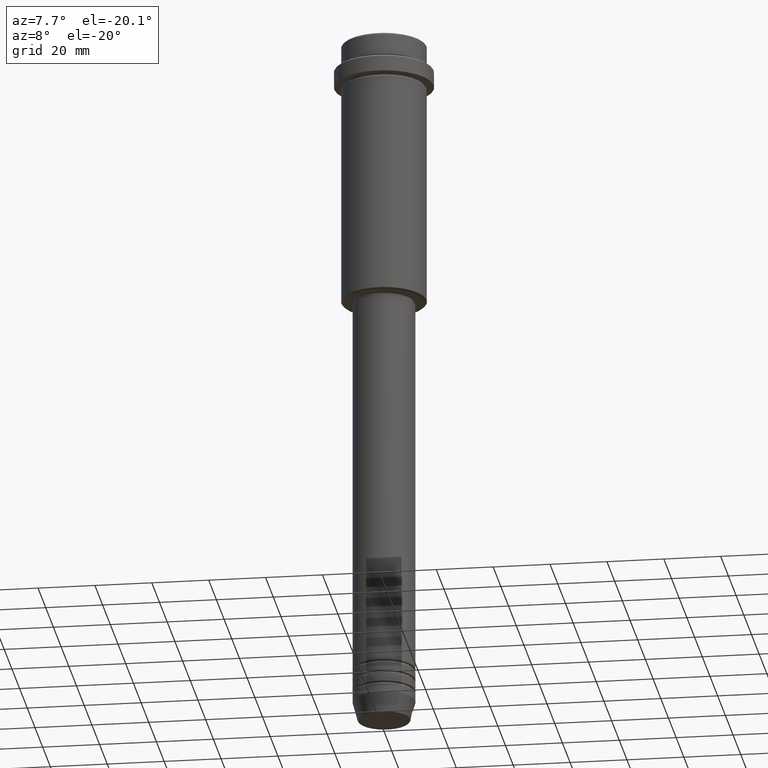
[diagram: clean part render]
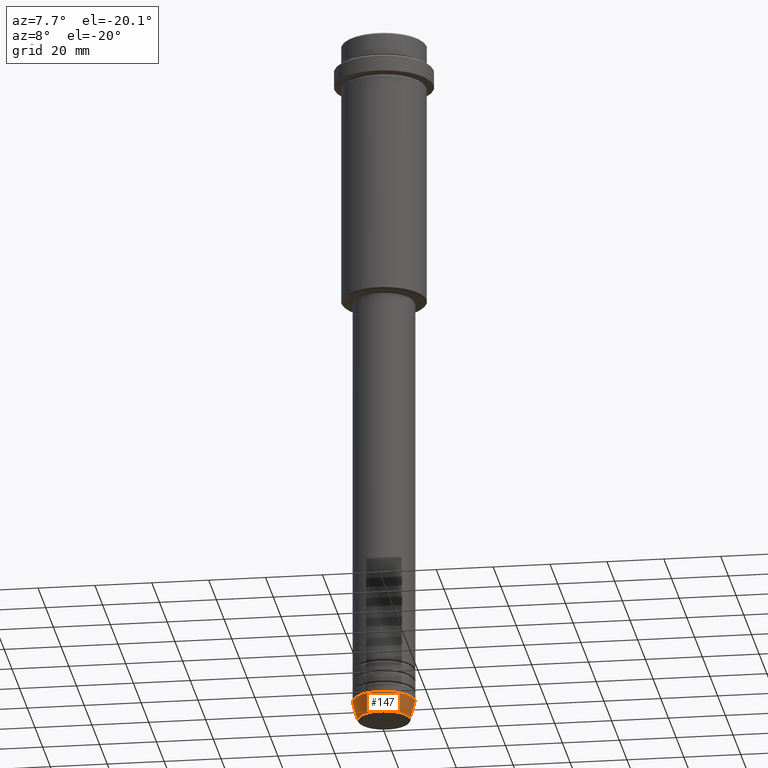
[diagram: same view with one face highlighted and labeled with its STEP entity id]
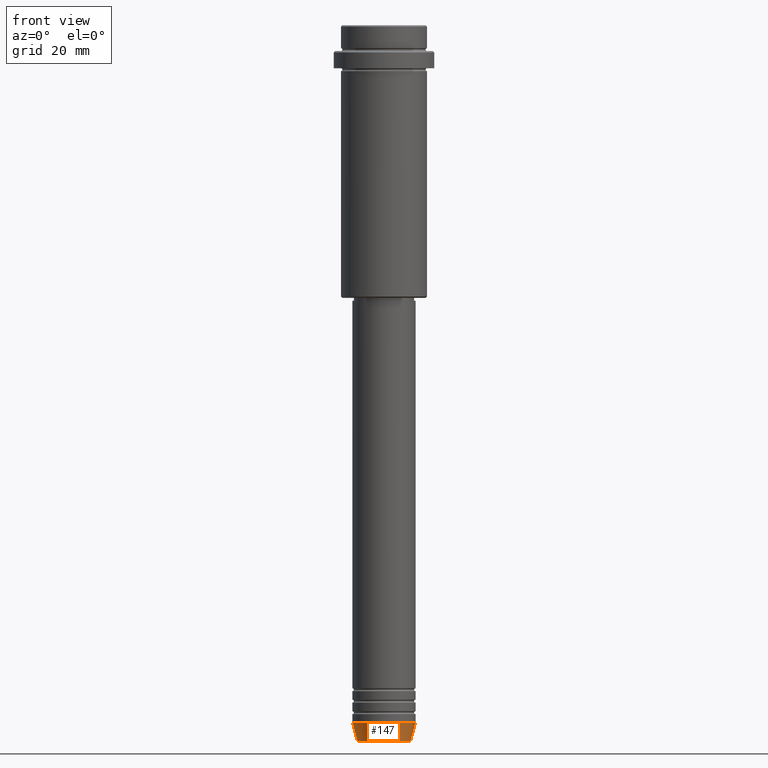
[diagram: same view with one face highlighted and labeled with its STEP entity id]
A machine part, auxiliary view. The second image highlights one B-rep face of the part: STEP entity #147.
A second angle (front view) of the same face is appended — the face is thin or edge-on in the first view.
In plain terms, the highlighted conical surface has half-angle 15 deg.
Its self-contained STEP definition (entity closure, byte-faithful):
#3 = CIRCLE ( 'NONE', #548, 9.223655072137189492 ) ;
#21 = VERTEX_POINT ( 'NONE', #154 ) ;
#51 = LINE ( 'NONE', #1247, #1263 ) ;
#147 = ADVANCED_FACE ( 'NONE', ( #1091 ), #931, .T. ) ;
#154 = CARTESIAN_POINT ( 'NONE',  ( -11.00000000000000000, 1.347111479062088405E-15, -243.0000000000000000 ) ) ;
#171 = CARTESIAN_POINT ( 'NONE',  ( 11.00000000000000000, 0.000000000000000000, -243.0000000000000000 ) ) ;
#175 = ORIENTED_EDGE ( 'NONE', *, *, #1133, .F. ) ;
#318 = CARTESIAN_POINT ( 'NONE',  ( 0.000000000000000000, 0.000000000000000000, -249.6294095225512422 ) ) ;
#341 = AXIS2_PLACEMENT_3D ( 'NONE', #1340, #350, #911 ) ;
#350 = DIRECTION ( 'NONE',  ( -0.000000000000000000, -0.000000000000000000, 1.000000000000000000 ) ) ;
#365 = ORIENTED_EDGE ( 'NONE', *, *, #389, .T. ) ;
#369 = CARTESIAN_POINT ( 'NONE',  ( -9.223655072137189492, 1.238341722557647202E-15, -249.6294095225512422 ) ) ;
#386 = AXIS2_PLACEMENT_3D ( 'NONE', #1080, #1397, #416 ) ;
#388 = DIRECTION ( 'NONE',  ( 0.2588190451025213501, 0.000000000000000000, 0.9659258262890680902 ) ) ;
#389 = EDGE_CURVE ( 'NONE', #585, #817, #611, .T. ) ;
#416 = DIRECTION ( 'NONE',  ( 1.000000000000000000, 0.000000000000000000, 0.000000000000000000 ) ) ;
#434 = VECTOR ( 'NONE', #388, 1000.000000000000000 ) ;
#534 = VERTEX_POINT ( 'NONE', #369 ) ;
#548 = AXIS2_PLACEMENT_3D ( 'NONE', #318, #652, #1082 ) ;
#552 = CARTESIAN_POINT ( 'NONE',  ( 9.223655072137189492, 0.000000000000000000, -249.6294095225512422 ) ) ;
#585 = VERTEX_POINT ( 'NONE', #552 ) ;
#611 = LINE ( 'NONE', #1368, #434 ) ;
#652 = DIRECTION ( 'NONE',  ( -0.000000000000000000, -0.000000000000000000, 1.000000000000000000 ) ) ;
#817 = VERTEX_POINT ( 'NONE', #171 ) ;
#911 = DIRECTION ( 'NONE',  ( 1.000000000000000000, 0.000000000000000000, 0.000000000000000000 ) ) ;
#914 = EDGE_LOOP ( 'NONE', ( #1377, #1016, #365, #175 ) ) ;
#931 = CONICAL_SURFACE ( 'NONE', #386, 11.00000000000000000, 0.2617993877991500740 ) ;
#1016 = ORIENTED_EDGE ( 'NONE', *, *, #1076, .T. ) ;
#1076 = EDGE_CURVE ( 'NONE', #534, #585, #3, .T. ) ;
#1080 = CARTESIAN_POINT ( 'NONE',  ( 0.000000000000000000, 0.000000000000000000, -243.0000000000000000 ) ) ;
#1082 = DIRECTION ( 'NONE',  ( 1.000000000000000000, 0.000000000000000000, 0.000000000000000000 ) ) ;
#1091 = FACE_OUTER_BOUND ( 'NONE', #914, .T. ) ;
#1133 = EDGE_CURVE ( 'NONE', #21, #817, #1381, .T. ) ;
#1142 = EDGE_CURVE ( 'NONE', #534, #21, #51, .T. ) ;
#1241 = DIRECTION ( 'NONE',  ( -0.2588190451025213501, 3.169619151431772337E-17, 0.9659258262890680902 ) ) ;
#1247 = CARTESIAN_POINT ( 'NONE',  ( -11.00000000000000000, 1.347111479062088405E-15, -243.0000000000000000 ) ) ;
#1263 = VECTOR ( 'NONE', #1241, 1000.000000000000000 ) ;
#1340 = CARTESIAN_POINT ( 'NONE',  ( 0.000000000000000000, 0.000000000000000000, -243.0000000000000000 ) ) ;
#1368 = CARTESIAN_POINT ( 'NONE',  ( 11.00000000000000000, 0.000000000000000000, -243.0000000000000000 ) ) ;
#1377 = ORIENTED_EDGE ( 'NONE', *, *, #1142, .F. ) ;
#1381 = CIRCLE ( 'NONE', #341, 11.00000000000000000 ) ;
#1397 = DIRECTION ( 'NONE',  ( -0.000000000000000000, -0.000000000000000000, 1.000000000000000000 ) ) ;